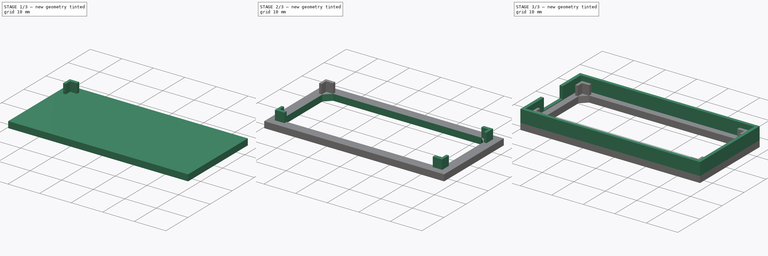
[diagram: build sequence overview — one tinted view per stage of 3, left to right]
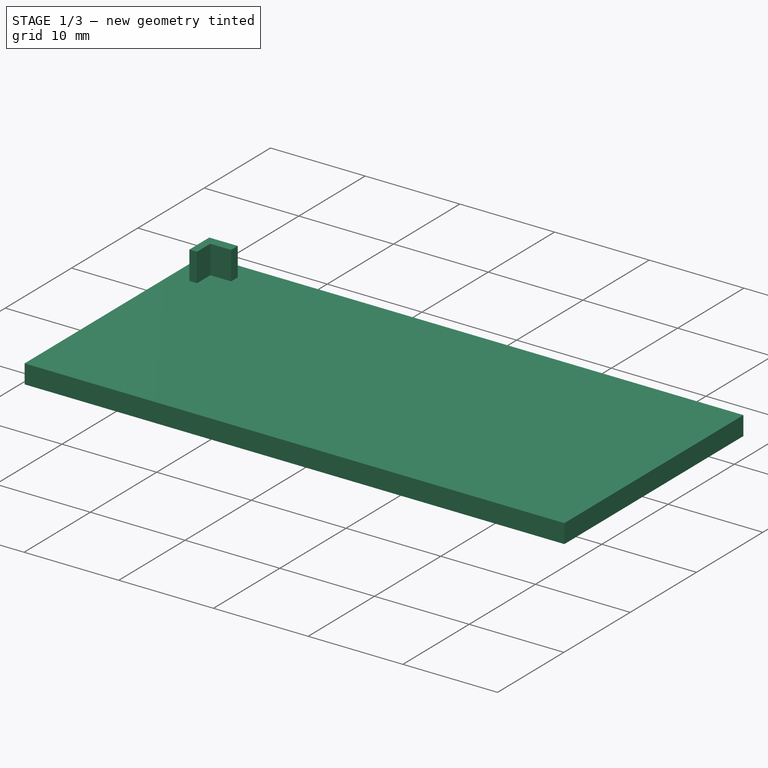
[diagram: stage 1 of 3 — iso view after this stage's code; geometry added in this stage tinted green]
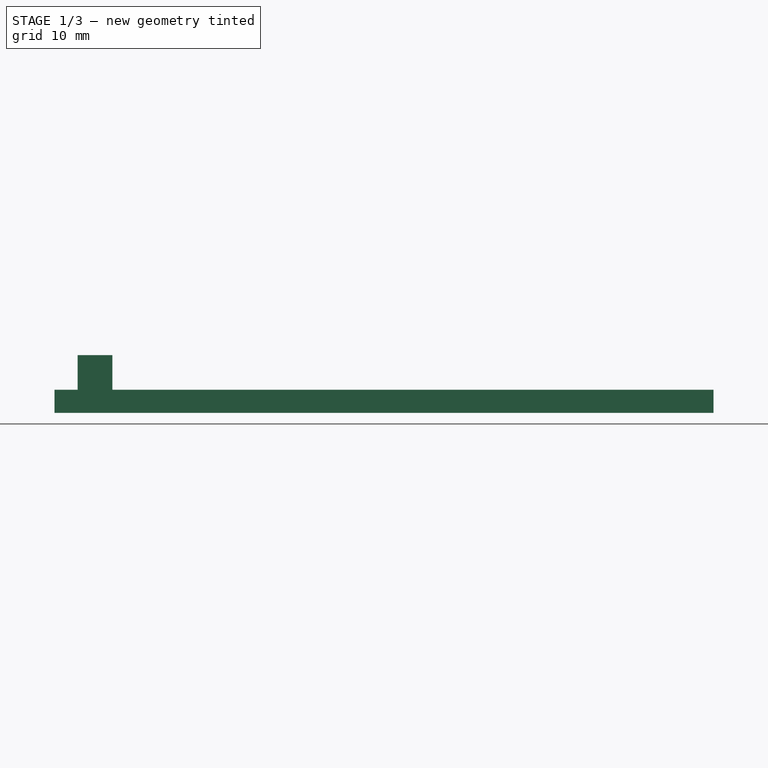
[diagram: stage 1 of 3 — front view after this stage's code; geometry added in this stage tinted green]
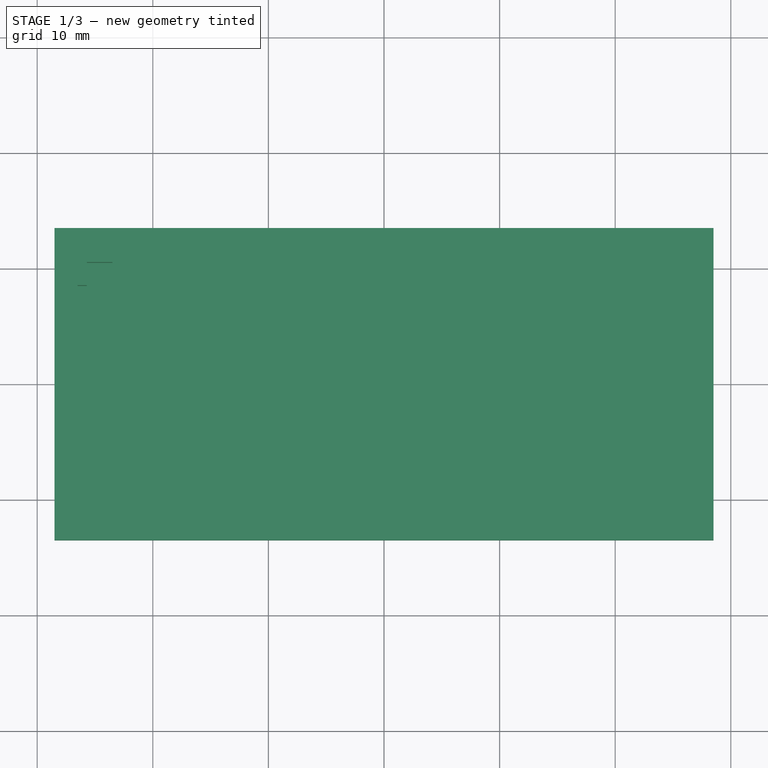
[diagram: stage 1 of 3 — top view after this stage's code; geometry added in this stage tinted green]
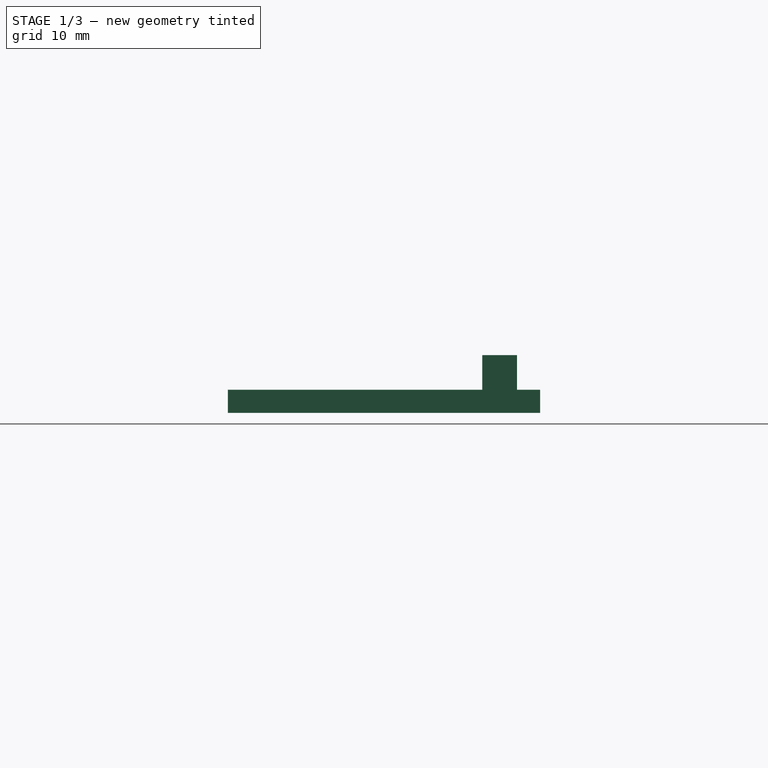
[diagram: stage 1 of 3 — right view after this stage's code; geometry added in this stage tinted green]
FCSTD DOCUMENT  (FreeCAD 0.19R)
Label: picoBracket
License: All rights reserved
LicenseURL: http://en.wikipedia.org/wiki/All_rights_reserved
objects: Sketcher::SketchObject×5, PartDesign::Pad×3, PartDesign::Mirrored×2, PartDesign::Pocket×2, PartDesign::MultiTransform×1, PartDesign::Body×1
note: 19 computed .brp shape members not serialized (recipe doc carries the construction recipe); baked Part::Feature solids carry a one-line shape summary decoded from their .brp

FEATURE [Sketcher::SketchObject] Sketch  label="Bottom"
  FullyConstrained = true
  MapMode = 5
  Support = -> [XY_Plane]
  sketch-geometry (4):
    g0: LineSegment StartX=-28.5 StartY=13.5 StartZ=0 EndX=28.5 EndY=13.5 EndZ=0
    g1: LineSegment StartX=28.5 StartY=13.5 StartZ=0 EndX=28.5 EndY=-13.5 EndZ=0
    g2: LineSegment StartX=28.5 StartY=-13.5 StartZ=0 EndX=-28.5 EndY=-13.5 EndZ=0
    g3: LineSegment StartX=-28.5 StartY=-13.5 StartZ=0 EndX=-28.5 EndY=13.5 EndZ=0
  constraints (12):
    c: Coincident(g0,g1)
    c: Coincident(g1,g2)
    c: Coincident(g2,g3)
    c: Coincident(g3,g0)
    c: Horizontal(g0)
    c: Horizontal(g2)
    c: Vertical(g1)
    c: Vertical(g3)
    c: DistanceX(g0,g0) = 57
    c: DistanceY(g1,g1) = 27
    c: DistanceX(g0,g-1) = 28.5
    c: DistanceY(g-1,g0) = 13.5
FEATURE [PartDesign::Pad] Pad  label="PadBottom"
  Direction = (0,0,1)
  Length = 2
  Length2 = 10
  Profile = -> Sketch
  Type = 0
FEATURE [Sketcher::SketchObject] Sketch001
  ExternalGeometry = -> [Pad]
  FullyConstrained = true
  MapMode = 5
  Placement = pos=(0,0,2) rot=(0,0,1;0rad)
  Support = -> [Pad]
  sketch-geometry (6):
    g0: LineSegment StartX=-26.5 StartY=11.5 StartZ=0 EndX=-23.5 EndY=11.5 EndZ=0
    g1: LineSegment StartX=-23.5 StartY=11.5 StartZ=0 EndX=-23.5 EndY=10.5 EndZ=0
    g2: LineSegment StartX=-23.5 StartY=10.5 StartZ=0 EndX=-25.7 EndY=10.5 EndZ=0
    g3: LineSegment StartX=-25.7 StartY=10.5 StartZ=0 EndX=-25.7 EndY=8.5 EndZ=0
    g4: LineSegment StartX=-25.7 StartY=8.5 StartZ=0 EndX=-26.5 EndY=8.5 EndZ=0
    g5: LineSegment StartX=-26.5 StartY=8.5 StartZ=0 EndX=-26.5 EndY=11.5 EndZ=0
  constraints (18):
    c: Horizontal(g0)
    c: Coincident(g0,g1)
    c: Coincident(g1,g2)
    c: Horizontal(g2)
    c: Coincident(g2,g3)
    c: Vertical(g3)
    c: Coincident(g3,g4)
    c: Coincident(g4,g5)
    c: Coincident(g5,g0)
    c: Vertical(g5)
    c: DistanceX(g0,g0) = 3
    c: DistanceY(g5,g5) = 3
    c: Angle(g4,g5) = 1.5708
    c: Angle(g0,g1) = 1.5708
    c: DistanceY(g1,g1) = 1
    c: DistanceX(g4,g4) = 0.8
    c: DistanceX(g-4,g0) = 2
    c: DistanceY(g0,g-4) = 2
FEATURE [PartDesign::Pad] Pad001  label="PadCorner"
  BaseFeature = -> Pad
  Direction = (0,0,1)
  Length = 3
  Length2 = 10
  Profile = -> Sketch001
  Type = 0
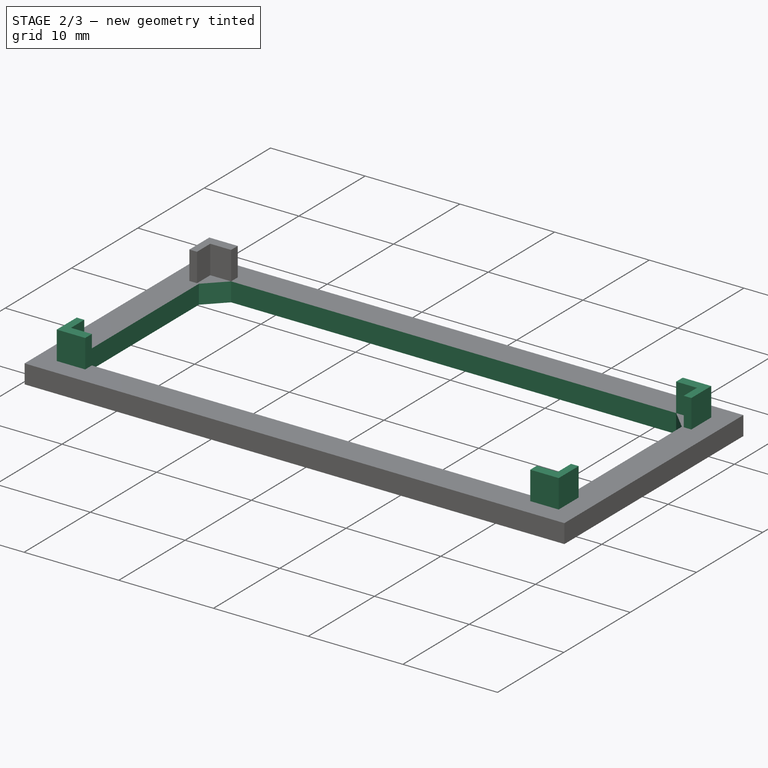
[diagram: stage 2 of 3 — iso view after this stage's code; geometry added in this stage tinted green]
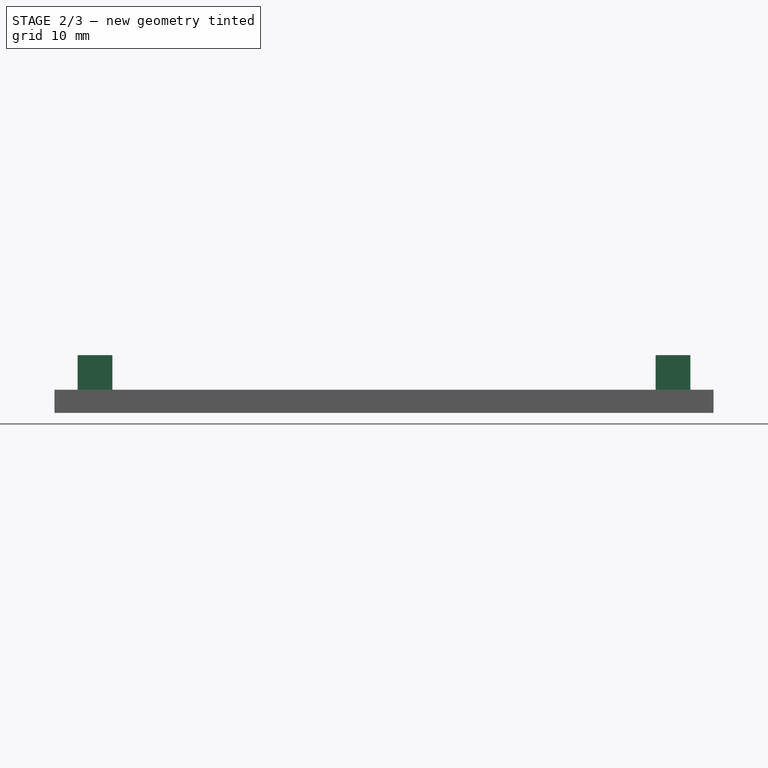
[diagram: stage 2 of 3 — front view after this stage's code; geometry added in this stage tinted green]
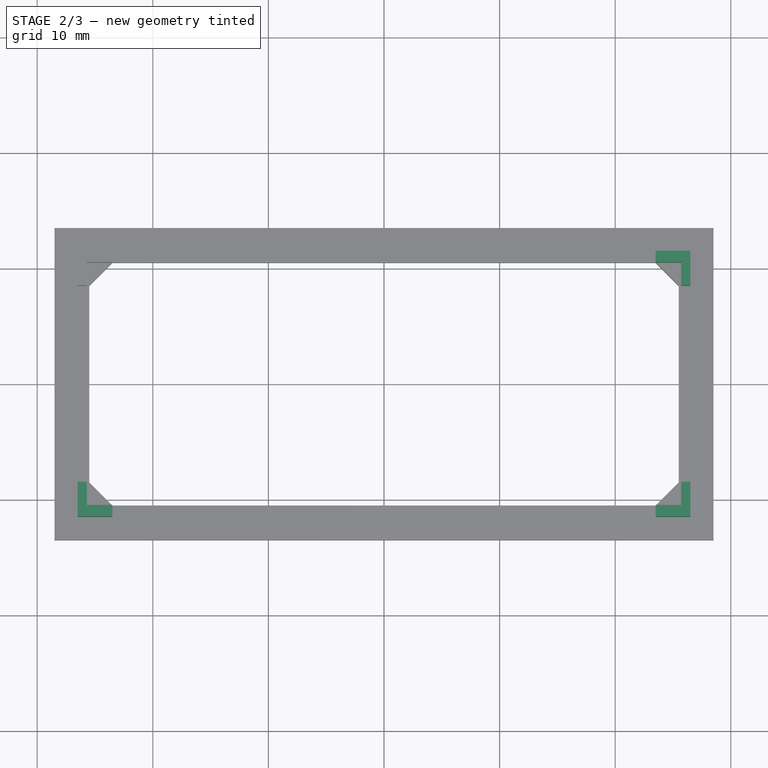
[diagram: stage 2 of 3 — top view after this stage's code; geometry added in this stage tinted green]
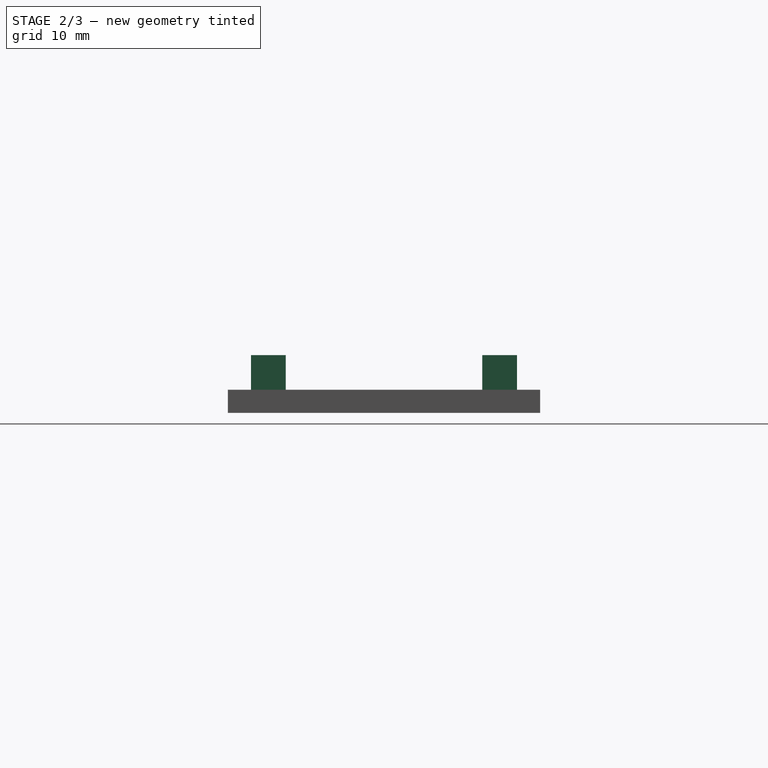
[diagram: stage 2 of 3 — right view after this stage's code; geometry added in this stage tinted green]
FEATURE [PartDesign::Mirrored] Mirrored
  MirrorPlane = -> Sketch001 [V_Axis]
FEATURE [PartDesign::Mirrored] Mirrored001
  MirrorPlane = -> Sketch001 [H_Axis]
FEATURE [PartDesign::MultiTransform] MultiTransform  label="MultiTransformCorners"
  BaseFeature = -> Pad001
  Originals = -> [Pad001]
  Transformations = -> [Mirrored,Mirrored001]
FEATURE [Sketcher::SketchObject] Sketch002
  ExternalGeometry = -> [MultiTransform]
  FullyConstrained = false
  MapMode = 5
  Placement = pos=(0,0,2) rot=(0,0,1;0rad)
  Support = -> [MultiTransform]
  sketch-geometry (8):
    g0: LineSegment StartX=23.5 StartY=10.5 StartZ=0 EndX=25.5 EndY=8.5 EndZ=0
    g1: LineSegment StartX=25.5 StartY=8.5 StartZ=0 EndX=25.5 EndY=-8.5 EndZ=0
    g2: LineSegment StartX=25.5 StartY=-8.5 StartZ=0 EndX=23.5 EndY=-10.5 EndZ=0
    g3: LineSegment StartX=23.5 StartY=-10.5 StartZ=0 EndX=-23.5 EndY=-10.5 EndZ=0
    g4: LineSegment StartX=-23.5 StartY=-10.5 StartZ=0 EndX=-25.5 EndY=-8.5 EndZ=0
    g5: LineSegment StartX=-25.5 StartY=-8.5 StartZ=0 EndX=-25.5 EndY=8.5 EndZ=0
    g6: LineSegment StartX=-25.5 StartY=8.5 StartZ=0 EndX=-23.5 EndY=10.5 EndZ=0
    g7: LineSegment StartX=-23.5 StartY=10.5 StartZ=0 EndX=23.5 EndY=10.5 EndZ=0
  constraints (16):
    c: Coincident(g0,g1)
    c: Coincident(g1,g2)
    c: Coincident(g2,g3)
    c: Coincident(g3,g4)
    c: Coincident(g4,g5)
    c: Coincident(g5,g6)
    c: Coincident(g6,g7)
    c: Coincident(g7,g0)
    c: Coincident(g6,g-3)
    c: Coincident(g0,g-10)
    c: Coincident(g0,g-11)
    c: Coincident(g-4,g5)
    c: Coincident(g3,g-6)
    c: Coincident(g-12,g1)
    c: Coincident(g-7,g2)
    c: Coincident(g-5,g4)
FEATURE [PartDesign::Pocket] Pocket  label="PocketBottom"
  BaseFeature = -> MultiTransform
  Length = 2
  Length2 = 5
  Profile = -> Sketch002
  Type = 0
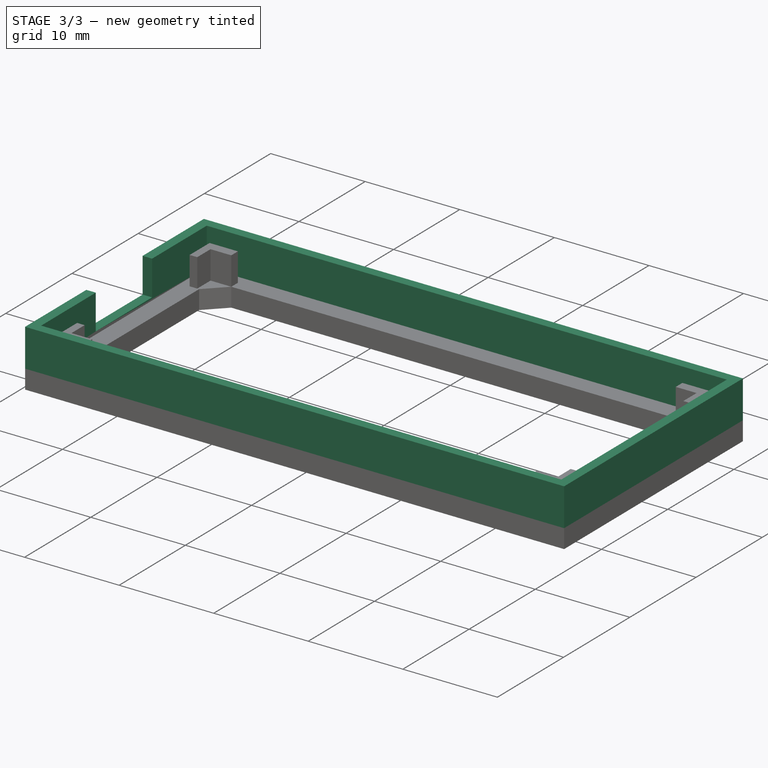
[diagram: stage 3 of 3 — iso view after this stage's code; geometry added in this stage tinted green]
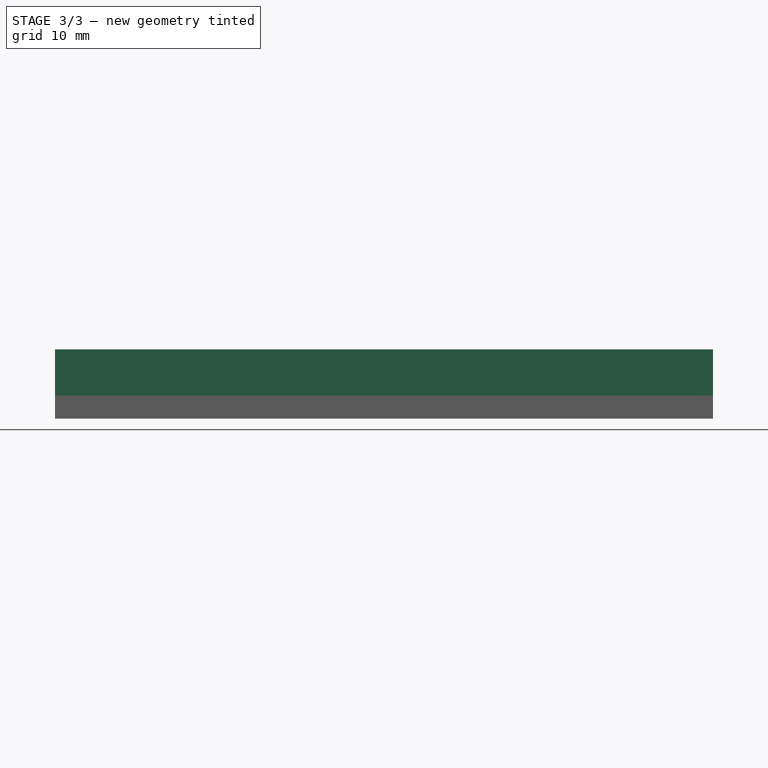
[diagram: stage 3 of 3 — front view after this stage's code; geometry added in this stage tinted green]
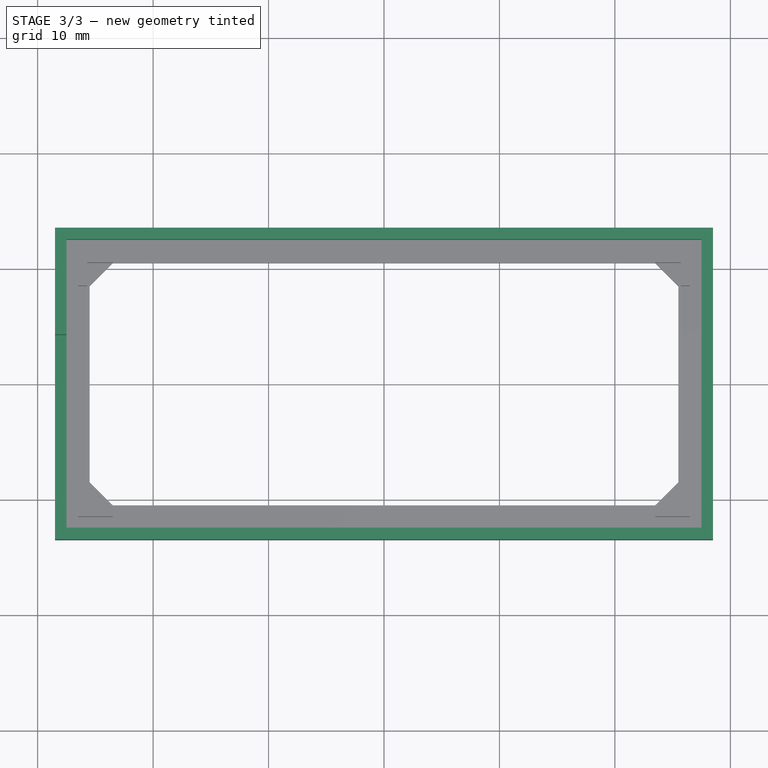
[diagram: stage 3 of 3 — top view after this stage's code; geometry added in this stage tinted green]
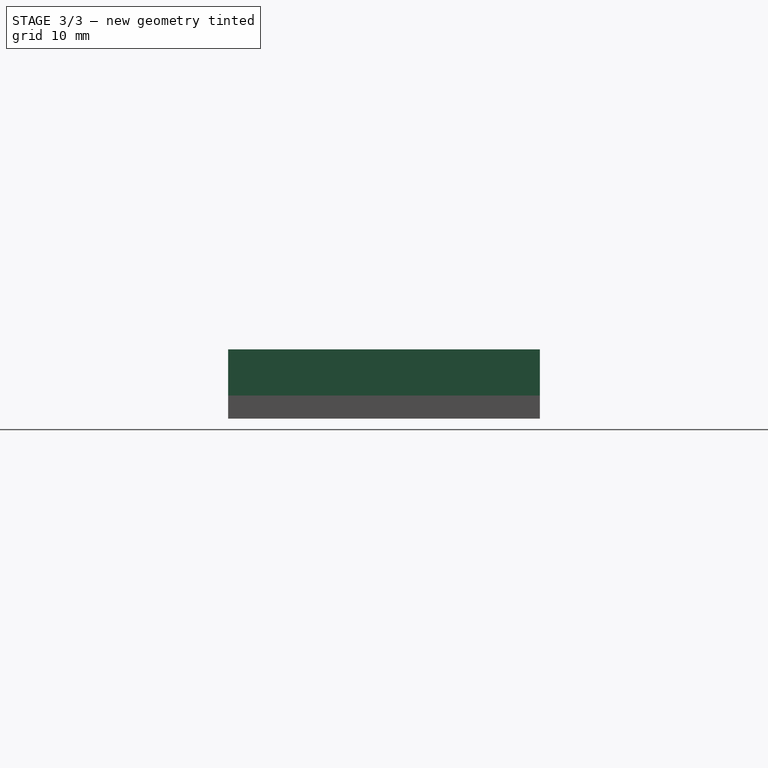
[diagram: stage 3 of 3 — right view after this stage's code; geometry added in this stage tinted green]
FEATURE [Sketcher::SketchObject] Sketch003  label="Wall"
  ExternalGeometry = -> [Pocket]
  FullyConstrained = true
  MapMode = 5
  Placement = pos=(0,0,2) rot=(0,0,1;0rad)
  Support = -> [Pocket]
  sketch-geometry (8):
    g0: LineSegment StartX=-28.5 StartY=13.5 StartZ=0 EndX=28.5 EndY=13.5 EndZ=0
    g1: LineSegment StartX=28.5 StartY=13.5 StartZ=0 EndX=28.5 EndY=-13.5 EndZ=0
    g2: LineSegment StartX=28.5 StartY=-13.5 StartZ=0 EndX=-28.5 EndY=-13.5 EndZ=0
    g3: LineSegment StartX=-28.5 StartY=-13.5 StartZ=0 EndX=-28.5 EndY=13.5 EndZ=0
    g4: LineSegment StartX=-27.5 StartY=12.5 StartZ=0 EndX=27.5 EndY=12.5 EndZ=0
    g5: LineSegment StartX=27.5 StartY=12.5 StartZ=0 EndX=27.5 EndY=-12.5 EndZ=0
    g6: LineSegment StartX=27.5 StartY=-12.5 StartZ=0 EndX=-27.5 EndY=-12.5 EndZ=0
    g7: LineSegment StartX=-27.5 StartY=-12.5 StartZ=0 EndX=-27.5 EndY=12.5 EndZ=0
  constraints (21):
    c: Coincident(g0,g1)
    c: Coincident(g1,g2)
    c: Coincident(g2,g3)
    c: Coincident(g3,g0)
    c: Horizontal(g0)
    c: Vertical(g3)
    c: Coincident(g0,g-6)
    c: Coincident(g1,g-6)
    c: Coincident(g2,g-5)
    c: Coincident(g4,g5)
    c: Coincident(g5,g6)
    c: Coincident(g6,g7)
    c: Coincident(g7,g4)
    c: Horizontal(g4)
    c: Horizontal(g6)
    c: Vertical(g5)
    c: Vertical(g7)
    c: DistanceX(g0,g4) = 1
    c: DistanceY(g4,g0) = 1
    c: DistanceX(g4,g0) = 1
    c: DistanceY(g2,g6) = 1
FEATURE [PartDesign::Pad] Pad002  label="Wall001"
  BaseFeature = -> Pocket
  Direction = (0,0,1)
  Length = 4
  Length2 = 10
  Profile = -> Sketch003
  Type = 0
FEATURE [Sketcher::SketchObject] Sketch004
  ExternalGeometry = -> [Pad002]
  FullyConstrained = true
  MapMode = 5
  Placement = pos=(0,0,6) rot=(0,0,1;0rad)
  Support = -> [Pad002]
  sketch-geometry (4):
    g0: LineSegment StartX=-27.5 StartY=-4.25 StartZ=0 EndX=-28.5 EndY=-4.25 EndZ=0
    g1: LineSegment StartX=-28.5 StartY=-4.25 StartZ=0 EndX=-28.5 EndY=4.25 EndZ=0
    g2: LineSegment StartX=-28.5 StartY=4.25 StartZ=0 EndX=-27.5 EndY=4.25 EndZ=0
    g3: LineSegment StartX=-27.5 StartY=4.25 StartZ=0 EndX=-27.5 EndY=-4.25 EndZ=0
  constraints (12):
    c: Coincident(g0,g1)
    c: Coincident(g1,g2)
    c: Coincident(g2,g3)
    c: Coincident(g3,g0)
    c: Horizontal(g0)
    c: Horizontal(g2)
    c: Vertical(g1)
    c: Vertical(g3)
    c: DistanceY(g1,g1) = 8.5
    c: DistanceX(g-3,g1) = 0
    c: DistanceY(g1,g-3) = 9.25
    c: DistanceX(g0,g0) = 1
FEATURE [PartDesign::Pocket] Pocket001
  BaseFeature = -> Pad002
  Length = 3.7
  Length2 = 100
  Profile = -> Sketch004
  Type = 0
FEATURE [PartDesign::Body] Body
  Group = -> [Sketch,Pad,Sketch001,Pad001,MultiTransform,Mirrored,Mirrored001,Sketch002,Pocket,Sketch003,Pad002,Sketch004,Pocket001]
  Origin = -> Origin
  Tip = -> Pocket001
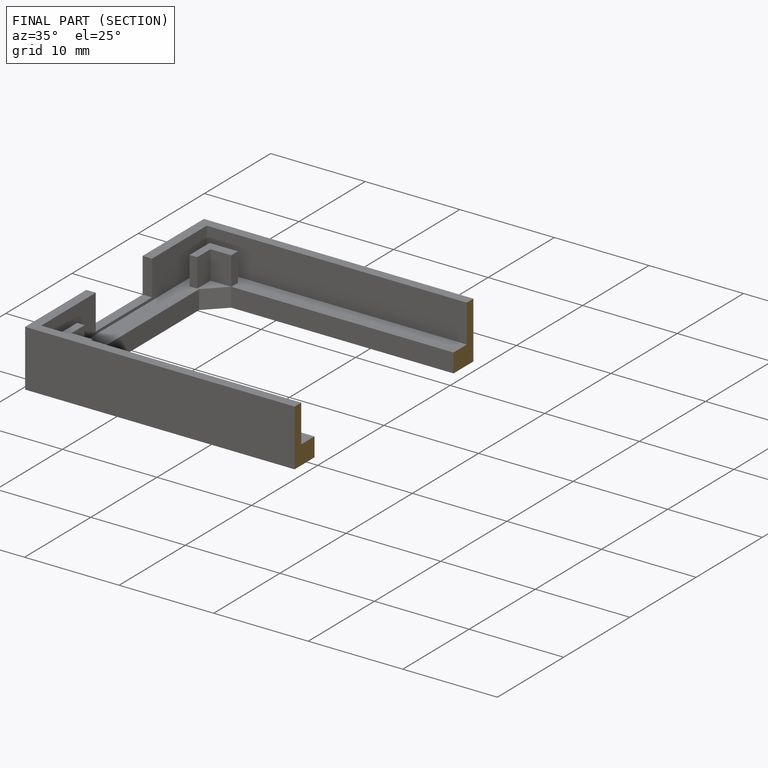
[diagram: finished part — half-section view (interior)]
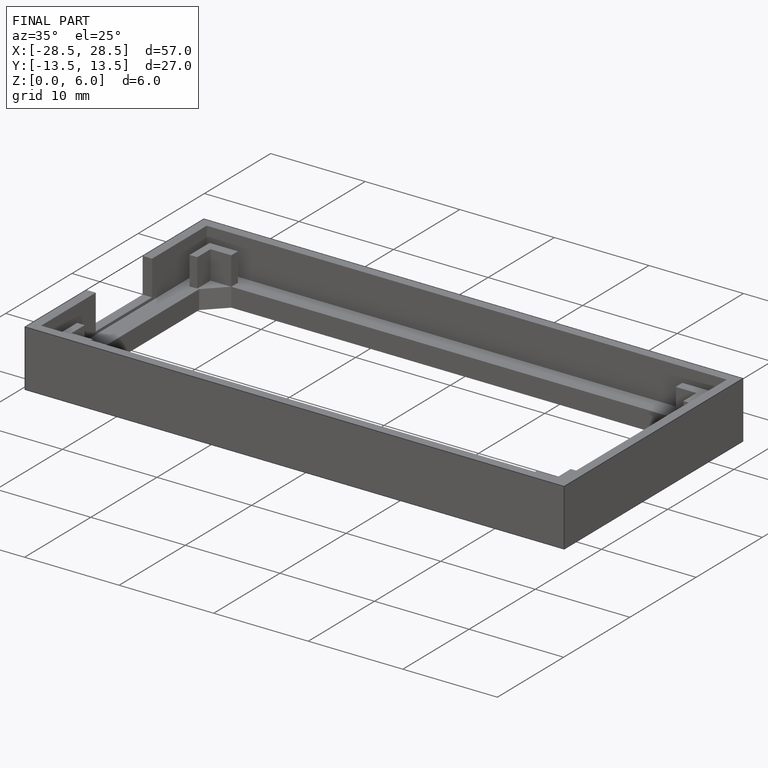
[diagram: finished part — iso view with bounding-box wireframe]
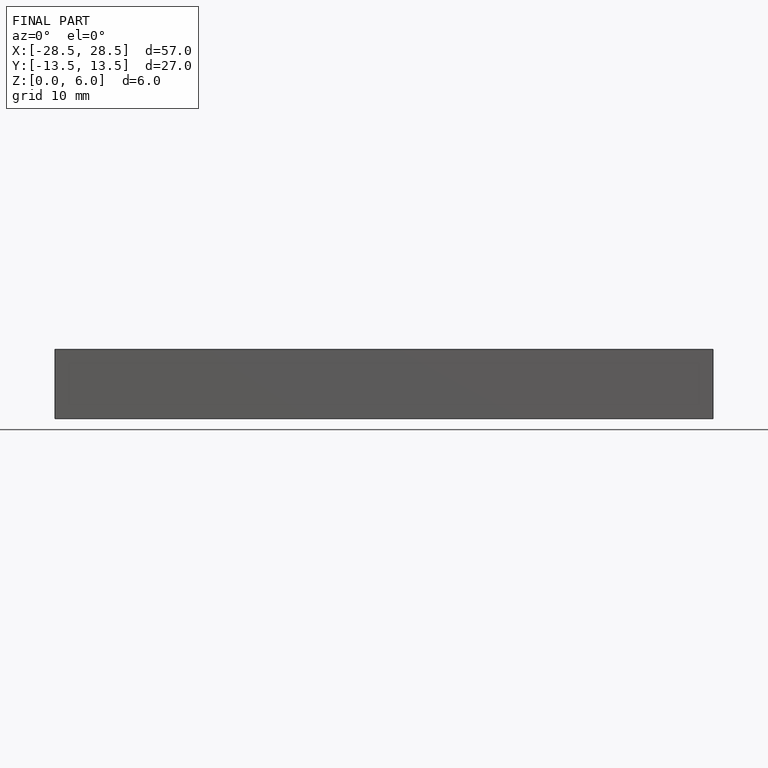
[diagram: finished part — front view with bounding-box wireframe]
